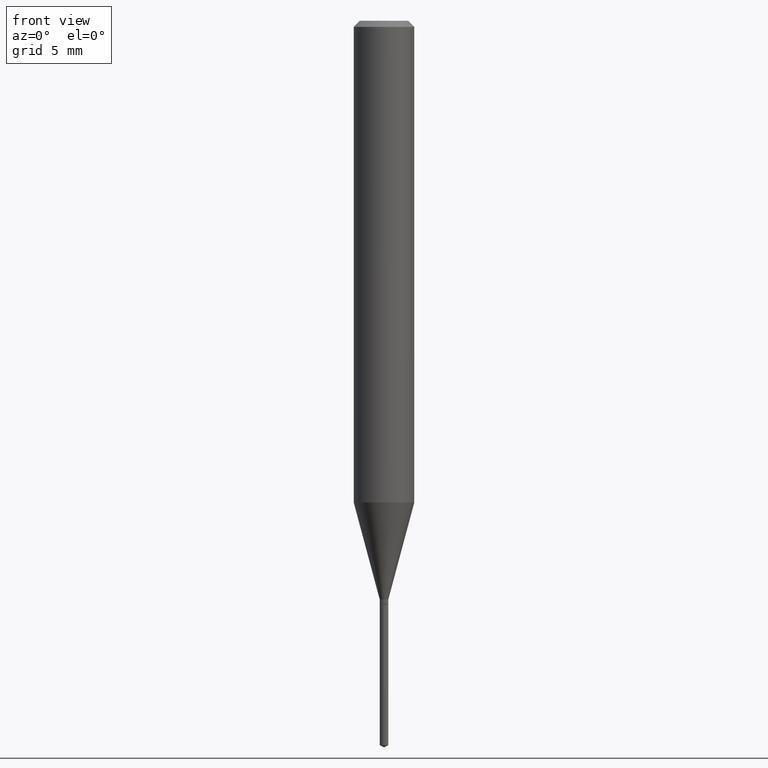
[diagram: clean part render]
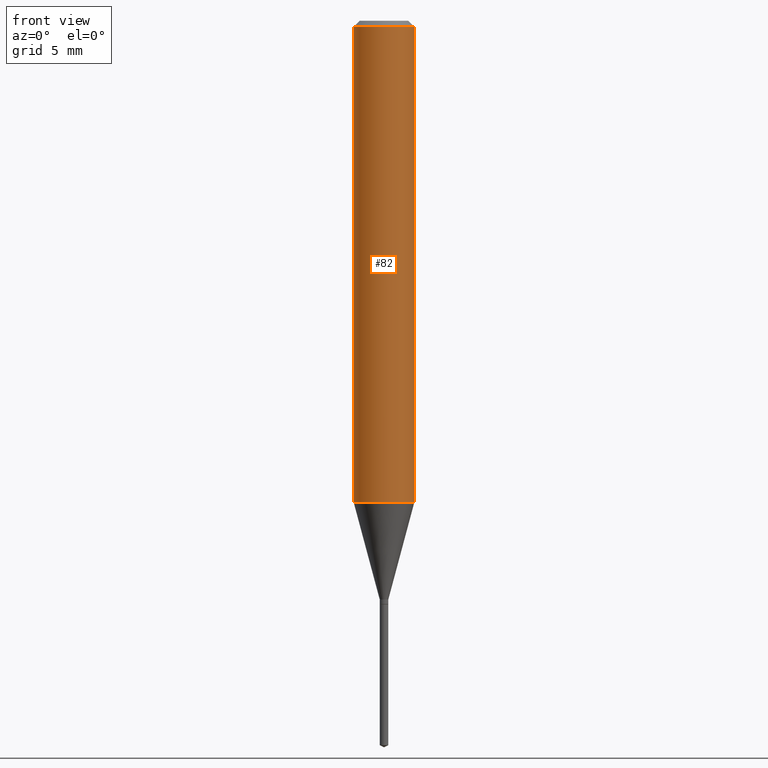
[diagram: same view with one face highlighted and labeled with its STEP entity id]
A machine part, front view. The second image highlights one B-rep face of the part: STEP entity #82.
In plain terms, the highlighted cylindrical surface (edge-blend (fillet) strip) has radius 1.5875 mm, axis along (-0, 0, 1).
Its self-contained STEP definition (entity closure, byte-faithful):
#21 = CARTESIAN_POINT ( 'NONE',  ( 0.06250000000000000000, -4.800786840909313294E-16, -0.01250000000000008570 ) ) ;
#23 = DIRECTION ( 'NONE',  ( -2.445468806185136877E-29, 3.491481338843145188E-15, 1.000000000000000000 ) ) ;
#30 = DIRECTION ( 'NONE',  ( -2.445468806185136597E-29, 3.491481338843145583E-15, 1.000000000000000000 ) ) ;
#32 = CARTESIAN_POINT ( 'NONE',  ( 3.056836007731441853E-31, -4.364351673553962300E-17, -0.01250000000000008570 ) ) ;
#44 = ORIENTED_EDGE ( 'NONE', *, *, #350, .T. ) ;
#46 = DIRECTION ( 'NONE',  ( 1.000000000000000000, -6.982962677686267499E-15, 4.876176775795936353E-29 ) ) ;
#48 = AXIS2_PLACEMENT_3D ( 'NONE', #308, #30, #345 ) ;
#74 = CARTESIAN_POINT ( 'NONE',  ( 0.06250000000000012490, -3.909675171772509851E-15, -0.9947754741739297524 ) ) ;
#82 = ADVANCED_FACE ( 'NONE', ( #278 ), #401, .T. ) ;
#86 = CIRCLE ( 'NONE', #284, 0.06250000000000000000 ) ;
#91 = VERTEX_POINT ( 'NONE', #390 ) ;
#100 = EDGE_LOOP ( 'NONE', ( #474, #44, #461, #405 ) ) ;
#187 = CIRCLE ( 'NONE', #48, 0.06250000000000012490 ) ;
#195 = DIRECTION ( 'NONE',  ( 1.000000000000000000, -6.982962677686266711E-15, 0.000000000000000000 ) ) ;
#201 = VECTOR ( 'NONE', #23, 39.37007874015748143 ) ;
#203 = VECTOR ( 'NONE', #484, 39.37007874015748143 ) ;
#209 = DIRECTION ( 'NONE',  ( -2.445468806185136597E-29, 3.491481338843145583E-15, 1.000000000000000000 ) ) ;
#211 = VERTEX_POINT ( 'NONE', #21 ) ;
#227 = LINE ( 'NONE', #476, #203 ) ;
#278 = FACE_OUTER_BOUND ( 'NONE', #100, .T. ) ;
#284 = AXIS2_PLACEMENT_3D ( 'NONE', #32, #295, #195 ) ;
#289 = CARTESIAN_POINT ( 'NONE',  ( 0.000000000000000000, 0.000000000000000000, 0.000000000000000000 ) ) ;
#295 = DIRECTION ( 'NONE',  ( -2.445468806185136597E-29, 3.491481338843145583E-15, 1.000000000000000000 ) ) ;
#302 = LINE ( 'NONE', #412, #201 ) ;
#305 = AXIS2_PLACEMENT_3D ( 'NONE', #289, #209, #46 ) ;
#308 = CARTESIAN_POINT ( 'NONE',  ( 2.432692391250373077E-29, -3.473240004417117392E-15, -0.9947754741739297524 ) ) ;
#313 = EDGE_CURVE ( 'NONE', #470, #211, #302, .T. ) ;
#345 = DIRECTION ( 'NONE',  ( 1.000000000000000000, -6.982962677686264344E-15, 0.000000000000000000 ) ) ;
#350 = EDGE_CURVE ( 'NONE', #91, #470, #187, .T. ) ;
#385 = EDGE_CURVE ( 'NONE', #402, #211, #86, .T. ) ;
#390 = CARTESIAN_POINT ( 'NONE',  ( -0.06250000000000012490, -3.029150794567053198E-15, -0.9947754741739297524 ) ) ;
#401 = CYLINDRICAL_SURFACE ( 'NONE', #305, 0.06250000000000005551 ) ;
#402 = VERTEX_POINT ( 'NONE', #487 ) ;
#405 = ORIENTED_EDGE ( 'NONE', *, *, #385, .F. ) ;
#412 = CARTESIAN_POINT ( 'NONE',  ( 0.06250000000000005551, -4.364351673553921131E-16, 3.047610484872463023E-30 ) ) ;
#422 = EDGE_CURVE ( 'NONE', #91, #402, #227, .T. ) ;
#461 = ORIENTED_EDGE ( 'NONE', *, *, #313, .T. ) ;
#470 = VERTEX_POINT ( 'NONE', #74 ) ;
#474 = ORIENTED_EDGE ( 'NONE', *, *, #422, .F. ) ;
#476 = CARTESIAN_POINT ( 'NONE',  ( -0.06250000000000005551, 4.440892098500630106E-16, -3.074334431409318916E-30 ) ) ;
#484 = DIRECTION ( 'NONE',  ( -2.445468806185136877E-29, 3.491481338843145188E-15, 1.000000000000000000 ) ) ;
#487 = CARTESIAN_POINT ( 'NONE',  ( -0.06250000000000000000, -1.314352550726264677E-15, -0.01250000000000008570 ) ) ;